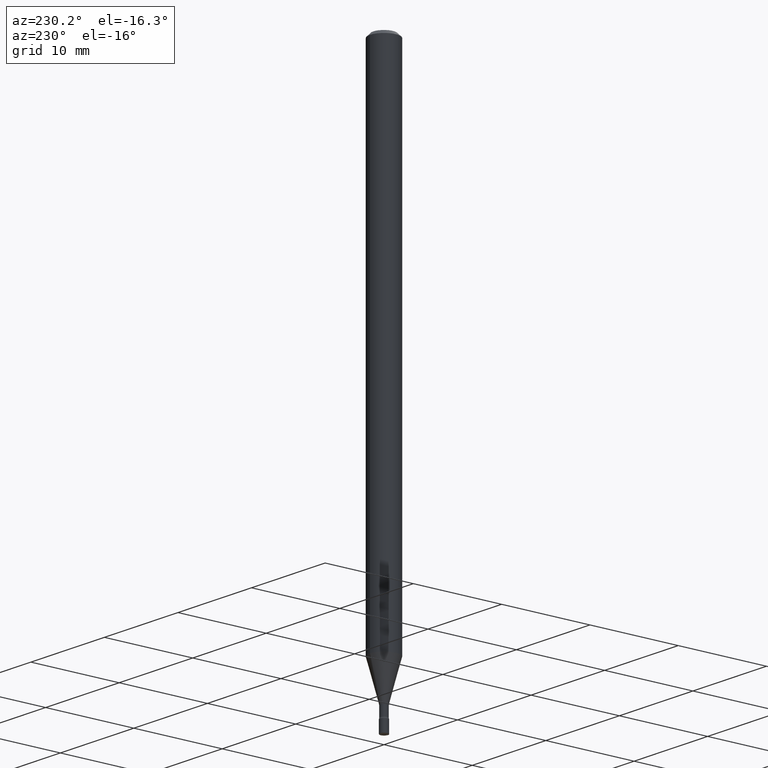
[diagram: clean part render]
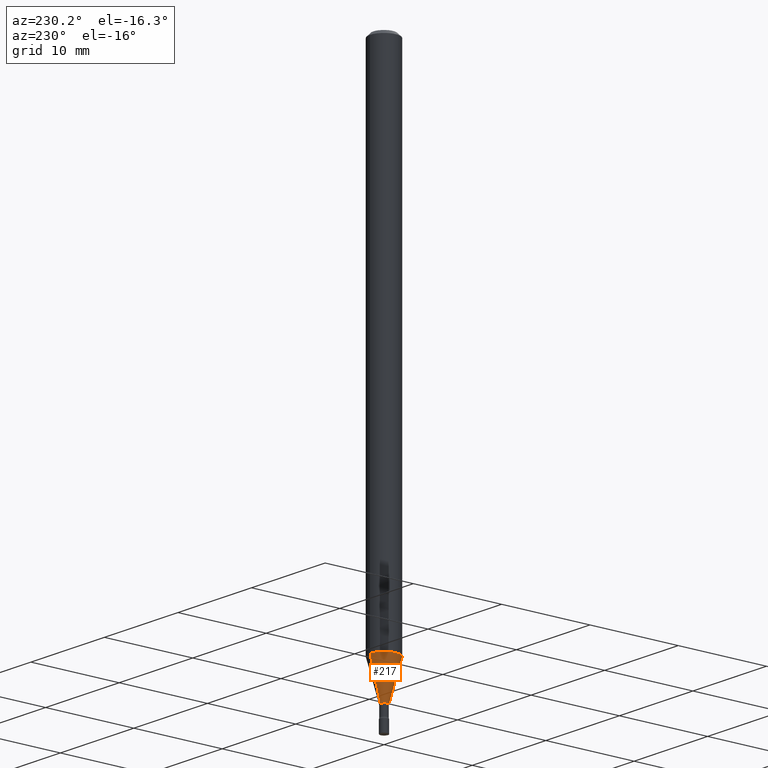
[diagram: same view with one face highlighted and labeled with its STEP entity id]
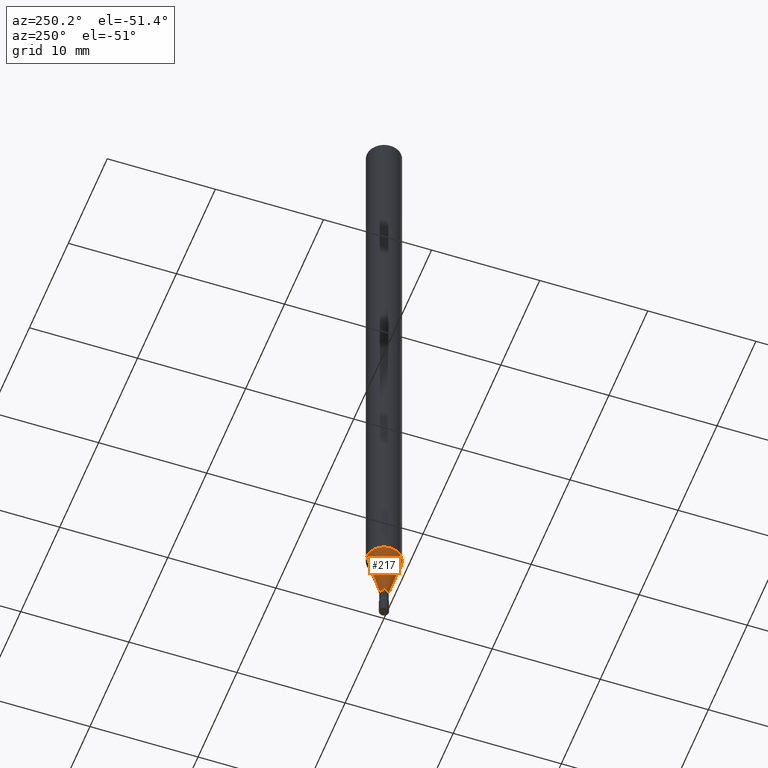
[diagram: same view with one face highlighted and labeled with its STEP entity id]
A machine part, auxiliary view. The second image highlights one B-rep face of the part: STEP entity #217.
A second angle (auxiliary view) of the same face is appended — the face is thin or edge-on in the first view.
In plain terms, the highlighted conical surface has half-angle 15 deg.
Its self-contained STEP definition (entity closure, byte-faithful):
#26 = VECTOR ( 'NONE', #453, 39.37007874015748854 ) ;
#33 = ORIENTED_EDGE ( 'NONE', *, *, #99, .F. ) ;
#34 = EDGE_CURVE ( 'NONE', #517, #433, #290, .T. ) ;
#99 = EDGE_CURVE ( 'NONE', #517, #424, #466, .T. ) ;
#116 = DIRECTION ( 'NONE',  ( 1.839019923739598738E-15, 0.2588190451025247363, 0.9659258262890673130 ) ) ;
#120 = CARTESIAN_POINT ( 'NONE',  ( 1.205159535236945642E-16, 0.01696111260565562676, -2.393092501787273285 ) ) ;
#125 = ORIENTED_EDGE ( 'NONE', *, *, #34, .T. ) ;
#127 = CARTESIAN_POINT ( 'NONE',  ( 2.823025816869059292E-16, 0.01696111260565562676, -2.393092501787273285 ) ) ;
#154 = FACE_OUTER_BOUND ( 'NONE', #449, .T. ) ;
#161 = AXIS2_PLACEMENT_3D ( 'NONE', #380, #342, #226 ) ;
#204 = AXIS2_PLACEMENT_3D ( 'NONE', #299, #419, #423 ) ;
#217 = ADVANCED_FACE ( 'NONE', ( #154 ), #300, .T. ) ;
#226 = DIRECTION ( 'NONE',  ( -6.982962677686266711E-15, -1.000000000000000000, 0.000000000000000000 ) ) ;
#236 = CARTESIAN_POINT ( 'NONE',  ( 4.440892098501168504E-16, 0.06249999999999222844, -2.223139060311453807 ) ) ;
#252 = VERTEX_POINT ( 'NONE', #382 ) ;
#273 = EDGE_CURVE ( 'NONE', #433, #252, #464, .T. ) ;
#282 = CIRCLE ( 'NONE', #451, 0.06250000000000000000 ) ;
#290 = CIRCLE ( 'NONE', #161, 0.01696111260566398118 ) ;
#292 = CARTESIAN_POINT ( 'NONE',  ( -1.184388162973271173E-16, -0.01696111260567233561, -2.393092501787273285 ) ) ;
#299 = CARTESIAN_POINT ( 'NONE',  ( 5.852253842295953472E-29, -8.355408055606071752E-15, -2.393092501787273285 ) ) ;
#300 = CONICAL_SURFACE ( 'NONE', #204, 0.01696111260566398118, 0.2617993877991500740 ) ;
#310 = EDGE_CURVE ( 'NONE', #424, #252, #282, .T. ) ;
#330 = DIRECTION ( 'NONE',  ( -2.445477489033632295E-29, 3.491468904509902525E-15, 1.000000000000000000 ) ) ;
#342 = DIRECTION ( 'NONE',  ( -2.445477489033632295E-29, 3.491468904509902525E-15, 1.000000000000000000 ) ) ;
#347 = ORIENTED_EDGE ( 'NONE', *, *, #310, .F. ) ;
#380 = CARTESIAN_POINT ( 'NONE',  ( 5.852253842295953472E-29, -8.355408055606071752E-15, -2.393092501787273285 ) ) ;
#381 = CARTESIAN_POINT ( 'NONE',  ( -1.184388162973271173E-16, -0.01696111260567233561, -2.393092501787273285 ) ) ;
#382 = CARTESIAN_POINT ( 'NONE',  ( -4.364351673553374845E-16, -0.06250000000000778544, -2.223139060311453363 ) ) ;
#409 = ORIENTED_EDGE ( 'NONE', *, *, #273, .T. ) ;
#411 = CARTESIAN_POINT ( 'NONE',  ( 5.436636526983041934E-29, -7.762020899478804819E-15, -2.223139060311453363 ) ) ;
#419 = DIRECTION ( 'NONE',  ( -2.445477489033632295E-29, 3.491468904509902525E-15, 1.000000000000000000 ) ) ;
#423 = DIRECTION ( 'NONE',  ( -6.982962677686266711E-15, -1.000000000000000000, 0.000000000000000000 ) ) ;
#424 = VERTEX_POINT ( 'NONE', #236 ) ;
#432 = VECTOR ( 'NONE', #116, 39.37007874015748854 ) ;
#433 = VERTEX_POINT ( 'NONE', #381 ) ;
#449 = EDGE_LOOP ( 'NONE', ( #33, #125, #409, #347 ) ) ;
#451 = AXIS2_PLACEMENT_3D ( 'NONE', #411, #330, #506 ) ;
#453 = DIRECTION ( 'NONE',  ( -1.807323732225328562E-15, -0.2588190451025179639, 0.9659258262890690894 ) ) ;
#464 = LINE ( 'NONE', #292, #26 ) ;
#466 = LINE ( 'NONE', #120, #432 ) ;
#506 = DIRECTION ( 'NONE',  ( -6.982962677686265922E-15, -1.000000000000000000, 4.370956789862821150E-15 ) ) ;
#517 = VERTEX_POINT ( 'NONE', #127 ) ;